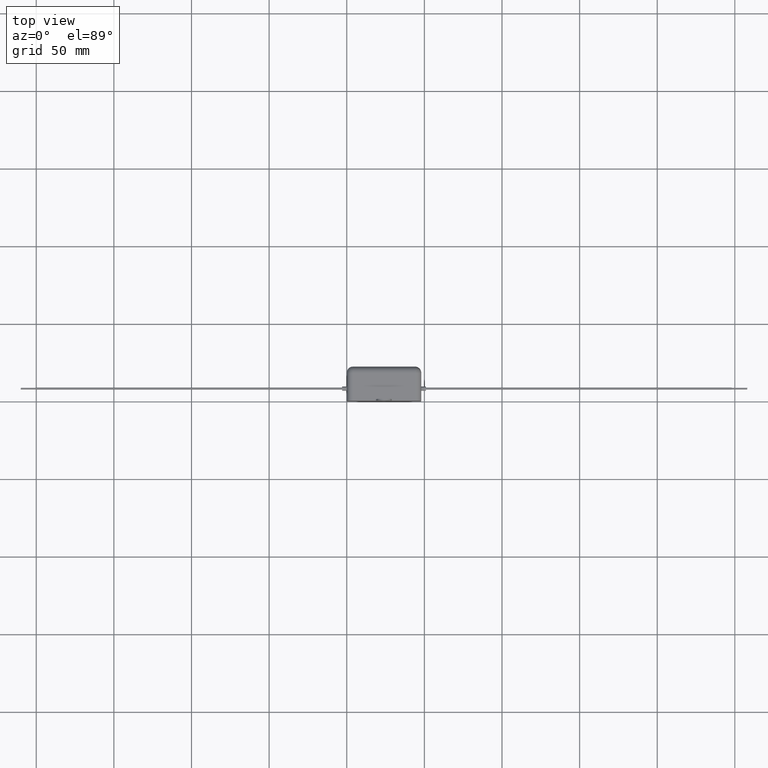
[diagram: clean part render]
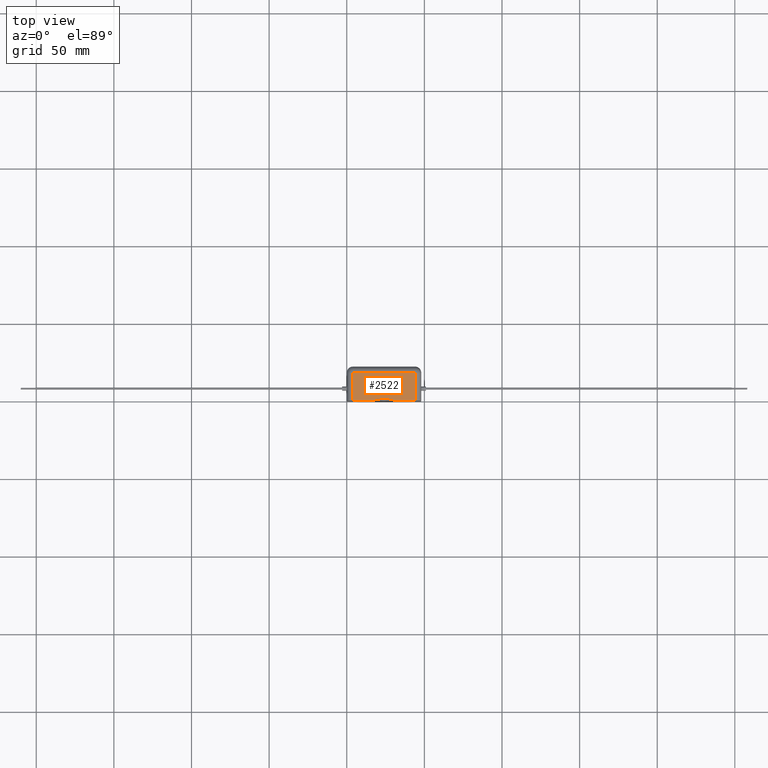
[diagram: same view with one face highlighted and labeled with its STEP entity id]
A machine part, top view. The second image highlights one B-rep face of the part: STEP entity #2522.
In plain terms, the highlighted planar face has unit normal (0, 0, -1).
Its self-contained STEP definition (entity closure, byte-faithful):
#30 = CARTESIAN_POINT ( 'NONE',  ( 18.25000000000000400, 1.000000000000000900, 0.0000000000000000000 ) ) ;
#124 = VERTEX_POINT ( 'NONE', #849 ) ;
#181 = FACE_OUTER_BOUND ( 'NONE', #1977, .T. ) ;
#193 = CARTESIAN_POINT ( 'NONE',  ( 44.00000000000000000, 22.00000000000000000, 0.0000000000000000000 ) ) ;
#231 = DIRECTION ( 'NONE',  ( -0.0000000000000000000, 1.000000000000000000, -0.0000000000000000000 ) ) ;
#241 = CARTESIAN_POINT ( 'NONE',  ( 4.000000000000000000, 0.0000000000000000000, 0.0000000000000000000 ) ) ;
#312 = CARTESIAN_POINT ( 'NONE',  ( 0.0000000000000000000, 18.00000000000000000, 0.0000000000000000000 ) ) ;
#403 = DIRECTION ( 'NONE',  ( -1.000000000000000000, 0.0000000000000000000, -0.0000000000000000000 ) ) ;
#431 = CARTESIAN_POINT ( 'NONE',  ( 44.00000000000000000, 18.00000000000000000, 0.0000000000000000000 ) ) ;
#450 = VERTEX_POINT ( 'NONE', #4289 ) ;
#502 = ORIENTED_EDGE ( 'NONE', *, *, #3489, .T. ) ;
#570 = VECTOR ( 'NONE', #231, 1000.000000000000000 ) ;
#726 = DIRECTION ( 'NONE',  ( 0.0000000000000000000, 0.0000000000000000000, -1.000000000000000000 ) ) ;
#826 = EDGE_CURVE ( 'NONE', #124, #5045, #1787, .T. ) ;
#843 = CARTESIAN_POINT ( 'NONE',  ( 0.0000000000000000000, 0.0000000000000000000, 0.0000000000000000000 ) ) ;
#849 = CARTESIAN_POINT ( 'NONE',  ( 44.00000000000000000, 0.0000000000000000000, 0.0000000000000000000 ) ) ;
#1005 = LINE ( 'NONE', #2366, #4525 ) ;
#1056 = VECTOR ( 'NONE', #1135, 1000.000000000000000 ) ;
#1096 = DIRECTION ( 'NONE',  ( -1.000000000000000000, -0.0000000000000000000, -0.0000000000000000000 ) ) ;
#1135 = DIRECTION ( 'NONE',  ( -1.000000000000000000, -0.0000000000000000000, 0.0000000000000000000 ) ) ;
#1170 = DIRECTION ( 'NONE',  ( 1.000000000000000000, 0.0000000000000000000, 0.0000000000000000000 ) ) ;
#1199 = CARTESIAN_POINT ( 'NONE',  ( 29.75000000000000400, 1.000000000000000000, 0.0000000000000000000 ) ) ;
#1337 = EDGE_CURVE ( 'NONE', #1459, #1472, #2937, .T. ) ;
#1459 = VERTEX_POINT ( 'NONE', #1199 ) ;
#1472 = VERTEX_POINT ( 'NONE', #3986 ) ;
#1476 = LINE ( 'NONE', #2996, #4519 ) ;
#1491 = ORIENTED_EDGE ( 'NONE', *, *, #4889, .T. ) ;
#1519 = CARTESIAN_POINT ( 'NONE',  ( 18.25000000000000400, 0.0000000000000000000, 0.0000000000000000000 ) ) ;
#1523 = VERTEX_POINT ( 'NONE', #1961 ) ;
#1787 = LINE ( 'NONE', #193, #570 ) ;
#1943 = CARTESIAN_POINT ( 'NONE',  ( 0.0000000000000000000, 22.00000000000000000, 0.0000000000000000000 ) ) ;
#1961 = CARTESIAN_POINT ( 'NONE',  ( 4.000000000000000000, 18.00000000000000000, 0.0000000000000000000 ) ) ;
#1977 = EDGE_LOOP ( 'NONE', ( #2097, #1491, #3471, #4777, #2064, #3962, #3303, #502 ) ) ;
#2064 = ORIENTED_EDGE ( 'NONE', *, *, #4058, .T. ) ;
#2097 = ORIENTED_EDGE ( 'NONE', *, *, #2118, .T. ) ;
#2118 = EDGE_CURVE ( 'NONE', #4500, #2532, #1005, .T. ) ;
#2155 = DIRECTION ( 'NONE',  ( 0.0000000000000000000, -1.000000000000000000, 0.0000000000000000000 ) ) ;
#2366 = CARTESIAN_POINT ( 'NONE',  ( 0.0000000000000000000, 0.0000000000000000000, 0.0000000000000000000 ) ) ;
#2432 = DIRECTION ( 'NONE',  ( -0.0000000000000000000, 1.000000000000000000, -0.0000000000000000000 ) ) ;
#2483 = VECTOR ( 'NONE', #2155, 1000.000000000000000 ) ;
#2487 = VECTOR ( 'NONE', #3983, 1000.000000000000000 ) ;
#2522 = ADVANCED_FACE ( 'NONE', ( #181 ), #3110, .F. ) ;
#2532 = VERTEX_POINT ( 'NONE', #1519 ) ;
#2613 = LINE ( 'NONE', #843, #2487 ) ;
#2626 = CARTESIAN_POINT ( 'NONE',  ( 29.75000000000000400, 0.0000000000000000000, 0.0000000000000000000 ) ) ;
#2629 = AXIS2_PLACEMENT_3D ( 'NONE', #1943, #726, #403 ) ;
#2937 = LINE ( 'NONE', #2626, #2483 ) ;
#2986 = LINE ( 'NONE', #312, #3727 ) ;
#2996 = CARTESIAN_POINT ( 'NONE',  ( 4.000000000000000000, 22.00000000000000000, 0.0000000000000000000 ) ) ;
#3110 = PLANE ( 'NONE',  #2629 ) ;
#3303 = ORIENTED_EDGE ( 'NONE', *, *, #4389, .T. ) ;
#3471 = ORIENTED_EDGE ( 'NONE', *, *, #4818, .F. ) ;
#3489 = EDGE_CURVE ( 'NONE', #1523, #4500, #1476, .T. ) ;
#3574 = VECTOR ( 'NONE', #2432, 1000.000000000000000 ) ;
#3727 = VECTOR ( 'NONE', #1096, 1000.000000000000000 ) ;
#3962 = ORIENTED_EDGE ( 'NONE', *, *, #826, .T. ) ;
#3983 = DIRECTION ( 'NONE',  ( 1.000000000000000000, 0.0000000000000000000, 0.0000000000000000000 ) ) ;
#3986 = CARTESIAN_POINT ( 'NONE',  ( 29.75000000000000400, 0.0000000000000000000, 0.0000000000000000000 ) ) ;
#4058 = EDGE_CURVE ( 'NONE', #1472, #124, #2613, .T. ) ;
#4289 = CARTESIAN_POINT ( 'NONE',  ( 18.25000000000000400, 1.000000000000000000, 0.0000000000000000000 ) ) ;
#4329 = LINE ( 'NONE', #5121, #1056 ) ;
#4389 = EDGE_CURVE ( 'NONE', #5045, #1523, #2986, .T. ) ;
#4500 = VERTEX_POINT ( 'NONE', #241 ) ;
#4519 = VECTOR ( 'NONE', #4538, 1000.000000000000000 ) ;
#4525 = VECTOR ( 'NONE', #1170, 1000.000000000000000 ) ;
#4538 = DIRECTION ( 'NONE',  ( 0.0000000000000000000, -1.000000000000000000, 0.0000000000000000000 ) ) ;
#4647 = LINE ( 'NONE', #30, #3574 ) ;
#4777 = ORIENTED_EDGE ( 'NONE', *, *, #1337, .T. ) ;
#4818 = EDGE_CURVE ( 'NONE', #1459, #450, #4329, .T. ) ;
#4889 = EDGE_CURVE ( 'NONE', #2532, #450, #4647, .T. ) ;
#5045 = VERTEX_POINT ( 'NONE', #431 ) ;
#5121 = CARTESIAN_POINT ( 'NONE',  ( 19.25000000000000400, 1.000000000000000000, 0.0000000000000000000 ) ) ;